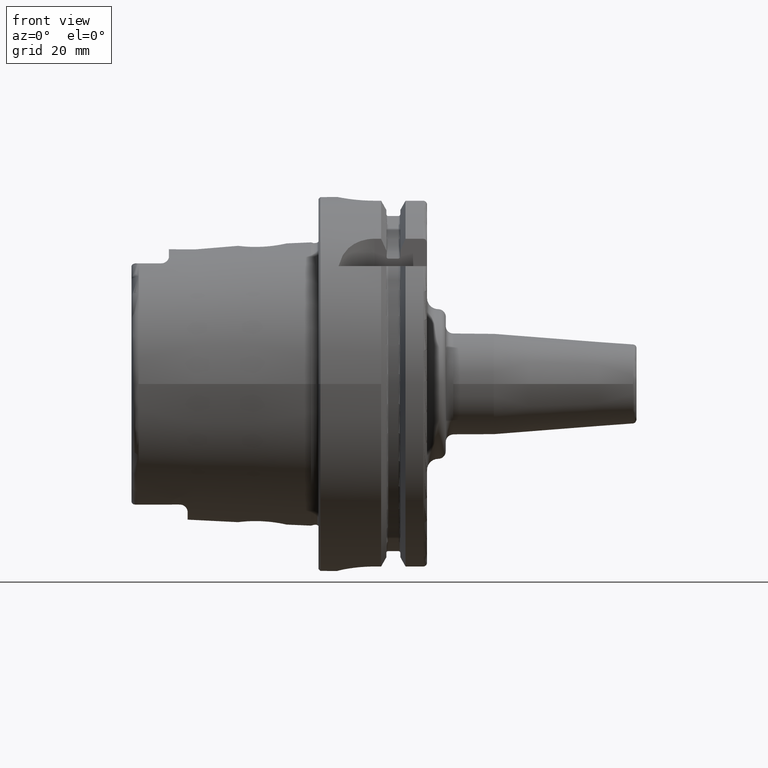
[diagram: clean part render]
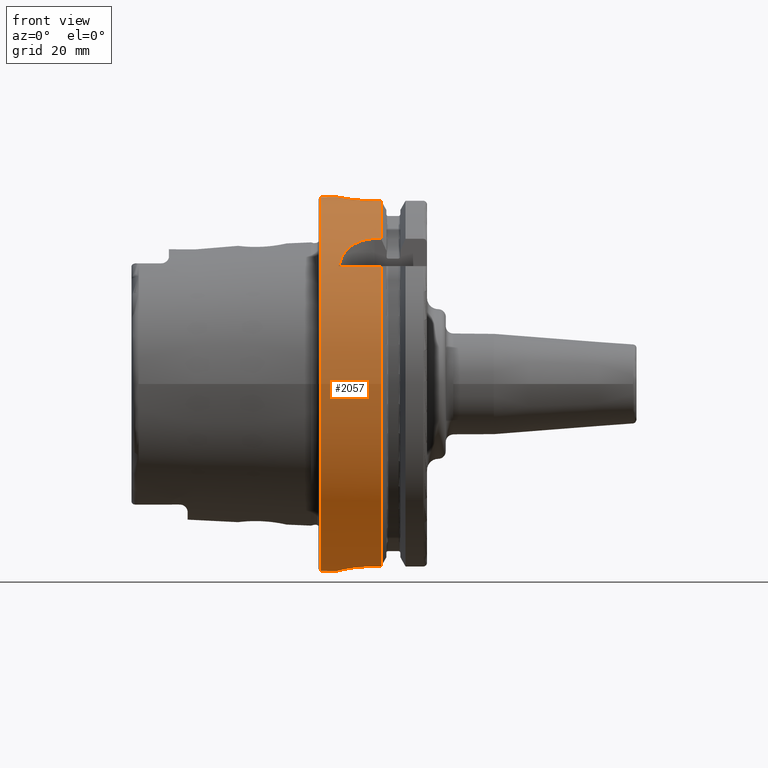
[diagram: same view with one face highlighted and labeled with its STEP entity id]
A machine part, front view. The second image highlights one B-rep face of the part: STEP entity #2057.
In plain terms, the highlighted cylindrical surface (bore or boss wall) has radius 50 mm, axis along (1, 0, 0).
Its self-contained STEP definition (entity closure, byte-faithful):
#56=B_SPLINE_CURVE_WITH_KNOTS('',3,(#3922,#3923,#3924,#3925,#3926,#3927,
#3928,#3929,#3930,#3931,#3932,#3933,#3934,#3935,#3936,#3937,#3938,#3939,
#3940,#3941,#3942,#3943,#3944,#3945,#3946,#3947),.UNSPECIFIED.,.F.,.F.,
(4,2,2,2,2,2,2,2,2,2,2,2,4),(0.,0.188478911015149,0.376957822030298,0.565436091508923,
0.753914360987547,0.942392630466172,1.1308708999448,1.31934981095995,1.50782872197509,
1.69630763299024,1.88478654400539,2.07326481348402,2.26174308296264),
 .UNSPECIFIED.);
#57=B_SPLINE_CURVE_WITH_KNOTS('',3,(#3948,#3949,#3950,#3951,#3952,#3953,
#3954,#3955,#3956,#3957),.UNSPECIFIED.,.F.,.F.,(4,2,2,2,4),(2.26174308296264,
2.45022135244127,2.63869962191989,2.82717853293504,3.01565744395019),
 .UNSPECIFIED.);
#58=B_SPLINE_CURVE_WITH_KNOTS('',3,(#3961,#3962,#3963,#3964,#3965,#3966,
#3967,#3968,#3969,#3970,#3971,#3972),.UNSPECIFIED.,.F.,.F.,(4,2,2,2,2,4),
(1.13213255574021,1.59216410027009,1.87572541272146,2.15928672517283,2.38471683342296,
2.61014694167308),.UNSPECIFIED.);
#65=B_SPLINE_CURVE_WITH_KNOTS('',3,(#4085,#4086,#4087,#4088,#4089,#4090,
#4091,#4092,#4093,#4094,#4095,#4096,#4097,#4098,#4099,#4100,#4101,#4102),
 .UNSPECIFIED.,.F.,.F.,(4,2,2,2,2,2,2,2,4),(0.,0.377795255890194,0.755590511780389,
1.13336459804459,1.51113868430879,1.88891277057299,2.26668685683718,2.64448211272738,
3.02227736861757),.UNSPECIFIED.);
#66=B_SPLINE_CURVE_WITH_KNOTS('',3,(#4110,#4111,#4112,#4113,#4114,#4115,
#4116,#4117,#4118,#4119),.UNSPECIFIED.,.F.,.F.,(4,2,2,2,4),(0.,0.377863193874929,
0.755726387749858,1.13417752669663,1.51262866564341),.UNSPECIFIED.);
#67=B_SPLINE_CURVE_WITH_KNOTS('',3,(#4123,#4124,#4125,#4126,#4127,#4128,
#4129,#4130,#4131,#4132),.UNSPECIFIED.,.F.,.F.,(4,2,2,2,4),(1.50996806152532,
1.8884192004721,2.26687033941887,2.6447335332938,3.02259672716873),
 .UNSPECIFIED.);
#94=FACE_BOUND('',#388,.T.);
#190=CYLINDRICAL_SURFACE('',#2271,50.);
#256=FACE_OUTER_BOUND('',#387,.T.);
#387=EDGE_LOOP('',(#1603,#1604,#1605,#1606,#1607,#1608,#1609,#1610,#1611,
#1612,#1613,#1614,#1615,#1616,#1617,#1618,#1619,#1620));
#388=EDGE_LOOP('',(#1621,#1622));
#513=LINE('',#3978,#619);
#519=LINE('',#4030,#625);
#524=LINE('',#4083,#630);
#525=LINE('',#4104,#631);
#526=LINE('',#4108,#632);
#527=LINE('',#4134,#633);
#528=LINE('',#4138,#634);
#619=VECTOR('',#2695,10.);
#625=VECTOR('',#2703,10.);
#630=VECTOR('',#2712,10.);
#631=VECTOR('',#2713,10.);
#632=VECTOR('',#2716,10.);
#633=VECTOR('',#2719,10.);
#634=VECTOR('',#2722,50.);
#743=CIRCLE('',#2272,50.);
#744=CIRCLE('',#2273,50.);
#745=CIRCLE('',#2274,50.);
#746=CIRCLE('',#2275,50.);
#747=CIRCLE('',#2276,50.);
#748=CIRCLE('',#2277,50.);
#924=VERTEX_POINT('',#3919);
#925=VERTEX_POINT('',#3921);
#926=VERTEX_POINT('',#3959);
#927=VERTEX_POINT('',#3960);
#929=VERTEX_POINT('',#3977);
#938=VERTEX_POINT('',#4029);
#947=VERTEX_POINT('',#4080);
#948=VERTEX_POINT('',#4082);
#949=VERTEX_POINT('',#4084);
#950=VERTEX_POINT('',#4103);
#951=VERTEX_POINT('',#4105);
#952=VERTEX_POINT('',#4107);
#953=VERTEX_POINT('',#4109);
#954=VERTEX_POINT('',#4120);
#955=VERTEX_POINT('',#4122);
#956=VERTEX_POINT('',#4133);
#957=VERTEX_POINT('',#4135);
#958=VERTEX_POINT('',#4137);
#1169=EDGE_CURVE('',#925,#924,#56,.T.);
#1170=EDGE_CURVE('',#924,#925,#57,.T.);
#1171=EDGE_CURVE('',#926,#927,#58,.T.);
#1174=EDGE_CURVE('',#927,#929,#513,.T.);
#1185=EDGE_CURVE('',#938,#926,#519,.T.);
#1195=EDGE_CURVE('',#947,#929,#743,.T.);
#1196=EDGE_CURVE('',#947,#948,#524,.T.);
#1197=EDGE_CURVE('',#948,#949,#65,.T.);
#1198=EDGE_CURVE('',#949,#950,#525,.T.);
#1199=EDGE_CURVE('',#951,#950,#744,.T.);
#1200=EDGE_CURVE('',#951,#952,#526,.T.);
#1201=EDGE_CURVE('',#952,#953,#66,.T.);
#1202=EDGE_CURVE('',#953,#954,#745,.T.);
#1203=EDGE_CURVE('',#954,#955,#67,.T.);
#1204=EDGE_CURVE('',#955,#956,#527,.T.);
#1205=EDGE_CURVE('',#957,#956,#746,.T.);
#1206=EDGE_CURVE('',#957,#958,#528,.T.);
#1207=EDGE_CURVE('',#958,#958,#747,.T.);
#1208=EDGE_CURVE('',#938,#957,#748,.T.);
#1603=ORIENTED_EDGE('',*,*,#1185,.T.);
#1604=ORIENTED_EDGE('',*,*,#1171,.T.);
#1605=ORIENTED_EDGE('',*,*,#1174,.T.);
#1606=ORIENTED_EDGE('',*,*,#1195,.F.);
#1607=ORIENTED_EDGE('',*,*,#1196,.T.);
#1608=ORIENTED_EDGE('',*,*,#1197,.T.);
#1609=ORIENTED_EDGE('',*,*,#1198,.T.);
#1610=ORIENTED_EDGE('',*,*,#1199,.F.);
#1611=ORIENTED_EDGE('',*,*,#1200,.T.);
#1612=ORIENTED_EDGE('',*,*,#1201,.T.);
#1613=ORIENTED_EDGE('',*,*,#1202,.T.);
#1614=ORIENTED_EDGE('',*,*,#1203,.T.);
#1615=ORIENTED_EDGE('',*,*,#1204,.T.);
#1616=ORIENTED_EDGE('',*,*,#1205,.F.);
#1617=ORIENTED_EDGE('',*,*,#1206,.T.);
#1618=ORIENTED_EDGE('',*,*,#1207,.T.);
#1619=ORIENTED_EDGE('',*,*,#1206,.F.);
#1620=ORIENTED_EDGE('',*,*,#1208,.F.);
#1621=ORIENTED_EDGE('',*,*,#1169,.T.);
#1622=ORIENTED_EDGE('',*,*,#1170,.T.);
#2057=ADVANCED_FACE('',(#256,#94),#190,.T.);
#2271=AXIS2_PLACEMENT_3D('',#4079,#2708,#2709);
#2272=AXIS2_PLACEMENT_3D('',#4081,#2710,#2711);
#2273=AXIS2_PLACEMENT_3D('',#4106,#2714,#2715);
#2274=AXIS2_PLACEMENT_3D('',#4121,#2717,#2718);
#2275=AXIS2_PLACEMENT_3D('',#4136,#2720,#2721);
#2276=AXIS2_PLACEMENT_3D('',#4139,#2723,#2724);
#2277=AXIS2_PLACEMENT_3D('',#4140,#2725,#2726);
#2695=DIRECTION('',(1.,0.,0.));
#2703=DIRECTION('',(-1.,0.,0.));
#2708=DIRECTION('center_axis',(1.,0.,0.));
#2709=DIRECTION('ref_axis',(0.,1.,0.));
#2710=DIRECTION('center_axis',(1.,0.,0.));
#2711=DIRECTION('ref_axis',(0.,0.,-1.));
#2712=DIRECTION('',(-1.,0.,0.));
#2713=DIRECTION('',(1.,0.,0.));
#2714=DIRECTION('center_axis',(1.,0.,0.));
#2715=DIRECTION('ref_axis',(0.,0.,-1.));
#2716=DIRECTION('',(-1.,0.,0.));
#2717=DIRECTION('center_axis',(-1.,0.,0.));
#2718=DIRECTION('ref_axis',(0.,1.,0.));
#2719=DIRECTION('',(1.,0.,0.));
#2720=DIRECTION('center_axis',(1.,0.,0.));
#2721=DIRECTION('ref_axis',(0.,0.,-1.));
#2722=DIRECTION('',(-1.,0.,0.));
#2723=DIRECTION('center_axis',(1.,0.,0.));
#2724=DIRECTION('ref_axis',(0.,0.,-1.));
#2725=DIRECTION('center_axis',(1.,0.,0.));
#2726=DIRECTION('ref_axis',(0.,0.,-1.));
#3919=CARTESIAN_POINT('',(12.,50.,-6.12323399573677E-16));
#3921=CARTESIAN_POINT('',(6.99999999999999,49.749371855331,5.));
#3922=CARTESIAN_POINT('Ctrl Pts',(6.99999999999999,49.749371855331,5.));
#3923=CARTESIAN_POINT('Ctrl Pts',(6.37173696328283,49.749371855331,5.));
#3924=CARTESIAN_POINT('Ctrl Pts',(5.70188570880885,49.7624993987098,4.87435544587055));
#3925=CARTESIAN_POINT('Ctrl Pts',(4.4701142477173,49.8098541153698,4.36395693611591));
#3926=CARTESIAN_POINT('Ctrl Pts',(3.90815809537484,49.8433908660961,3.97922590724033));
#3927=CARTESIAN_POINT('Ctrl Pts',(3.02077560297968,49.9062957431473,3.09184341484517));
#3928=CARTESIAN_POINT('Ctrl Pts',(2.63604339567929,49.9397591808605,2.52988660036719));
#3929=CARTESIAN_POINT('Ctrl Pts',(2.12564400622109,49.9869460568296,1.29811292154946));
#3930=CARTESIAN_POINT('Ctrl Pts',(1.99999999999999,50.,0.628260898262081));
#3931=CARTESIAN_POINT('Ctrl Pts',(1.99999999999999,50.,-0.628260898262082));
#3932=CARTESIAN_POINT('Ctrl Pts',(2.12564400622109,49.9869460568296,-1.29811292154946));
#3933=CARTESIAN_POINT('Ctrl Pts',(2.63604339567929,49.9397591808605,-2.52988660036719));
#3934=CARTESIAN_POINT('Ctrl Pts',(3.02077560297968,49.9062957431473,-3.09184341484517));
#3935=CARTESIAN_POINT('Ctrl Pts',(3.90815809537484,49.8433908660961,-3.97922590724033));
#3936=CARTESIAN_POINT('Ctrl Pts',(4.4701142477173,49.8098541153698,-4.36395693611591));
#3937=CARTESIAN_POINT('Ctrl Pts',(5.70188570880885,49.7624993987098,-4.87435544587055));
#3938=CARTESIAN_POINT('Ctrl Pts',(6.37173696328283,49.749371855331,-5.));
#3939=CARTESIAN_POINT('Ctrl Pts',(7.62826303671716,49.749371855331,-5.));
#3940=CARTESIAN_POINT('Ctrl Pts',(8.29811429119113,49.7624993987098,-4.87435544587055));
#3941=CARTESIAN_POINT('Ctrl Pts',(9.52988575228269,49.8098541153698,-4.36395693611591));
#3942=CARTESIAN_POINT('Ctrl Pts',(10.0918419046251,49.8433908660961,-3.97922590724033));
#3943=CARTESIAN_POINT('Ctrl Pts',(10.9792243970203,49.9062957431473,-3.09184341484517));
#3944=CARTESIAN_POINT('Ctrl Pts',(11.3639566043207,49.9397591808605,-2.52988660036719));
#3945=CARTESIAN_POINT('Ctrl Pts',(11.8743559937789,49.9869460568296,-1.29811292154947));
#3946=CARTESIAN_POINT('Ctrl Pts',(12.,50.,-0.628260898262083));
#3947=CARTESIAN_POINT('Ctrl Pts',(12.,50.,-5.55111512312578E-16));
#3948=CARTESIAN_POINT('Ctrl Pts',(12.,50.,-5.55111512312578E-16));
#3949=CARTESIAN_POINT('Ctrl Pts',(12.,50.,0.628260898262082));
#3950=CARTESIAN_POINT('Ctrl Pts',(11.8743559937789,49.9869460568296,1.29811292154946));
#3951=CARTESIAN_POINT('Ctrl Pts',(11.3639566043207,49.9397591808605,2.52988660036719));
#3952=CARTESIAN_POINT('Ctrl Pts',(10.9792243970203,49.9062957431473,3.09184341484517));
#3953=CARTESIAN_POINT('Ctrl Pts',(10.0918419046251,49.8433908660961,3.97922590724033));
#3954=CARTESIAN_POINT('Ctrl Pts',(9.52988575228269,49.8098541153698,4.36395693611591));
#3955=CARTESIAN_POINT('Ctrl Pts',(8.29811429119113,49.7624993987098,4.87435544587055));
#3956=CARTESIAN_POINT('Ctrl Pts',(7.62826303671716,49.749371855331,5.));
#3957=CARTESIAN_POINT('Ctrl Pts',(6.99999999999999,49.749371855331,5.));
#3959=CARTESIAN_POINT('',(5.36310214079494,-38.8297566307078,31.5));
#3960=CARTESIAN_POINT('',(15.,-31.5,38.8297566307078));
#3961=CARTESIAN_POINT('Ctrl Pts',(5.36310214079494,-38.8297566307078,31.5));
#3962=CARTESIAN_POINT('Ctrl Pts',(5.63795050776221,-37.8378299510303,32.722738779917));
#3963=CARTESIAN_POINT('Ctrl Pts',(6.08245260240086,-36.8264130955983,33.8486741193789));
#3964=CARTESIAN_POINT('Ctrl Pts',(7.14730321206235,-35.2667182945212,35.4540138707062));
#3965=CARTESIAN_POINT('Ctrl Pts',(7.68113760815893,-34.6306580359392,36.0741351437033));
#3966=CARTESIAN_POINT('Ctrl Pts',(8.97436758466638,-33.4722127660808,37.1515365058173));
#3967=CARTESIAN_POINT('Ctrl Pts',(9.73574998094174,-32.9521170857844,37.6088911783762));
#3968=CARTESIAN_POINT('Ctrl Pts',(11.1521999725134,-32.2432973482077,38.2170233500259));
#3969=CARTESIAN_POINT('Ctrl Pts',(11.8888981504148,-31.9629772872452,38.4503075998006));
#3970=CARTESIAN_POINT('Ctrl Pts',(13.4369856471743,-31.5908755949743,38.7566077888176));
#3971=CARTESIAN_POINT('Ctrl Pts',(14.2485663058329,-31.5,38.8297566307078));
#3972=CARTESIAN_POINT('Ctrl Pts',(15.,-31.5,38.8297566307078));
#3977=CARTESIAN_POINT('',(16.7379709790786,-31.5,38.8297566307078));
#3978=CARTESIAN_POINT('',(8.61898548953931,-31.5,38.8297566307078));
#4029=CARTESIAN_POINT('',(16.7379709790786,-38.8297566307078,31.5));
#4030=CARTESIAN_POINT('',(8.61898548953931,-38.8297566307078,31.5));
#4079=CARTESIAN_POINT('Origin',(8.61898548953931,0.,0.));
#4080=CARTESIAN_POINT('',(16.7379709790786,-10.,48.9897948556636));
#4081=CARTESIAN_POINT('Origin',(16.7379709790786,0.,0.));
#4082=CARTESIAN_POINT('',(15.,-10.,48.9897948556636));
#4083=CARTESIAN_POINT('',(8.61898548953931,-10.,48.9897948556636));
#4084=CARTESIAN_POINT('',(15.,10.,48.9897948556636));
#4085=CARTESIAN_POINT('Ctrl Pts',(15.,-10.,48.9897948556636));
#4086=CARTESIAN_POINT('Ctrl Pts',(13.740682480366,-10.,48.9897948556636));
#4087=CARTESIAN_POINT('Ctrl Pts',(12.3998222283811,-9.74762796248614,49.0433876618447));
#4088=CARTESIAN_POINT('Ctrl Pts',(9.93707994969945,-8.72605417648382,49.2354150792771));
#4089=CARTESIAN_POINT('Ctrl Pts',(8.81489539818993,-7.95703102192089,49.3709085101933));
#4090=CARTESIAN_POINT('Ctrl Pts',(7.04301862271998,-6.18515424645094,49.6240337638318));
#4091=CARTESIAN_POINT('Ctrl Pts',(6.27395658455242,-5.06294861197626,49.7583347151863));
#4092=CARTESIAN_POINT('Ctrl Pts',(5.25235457764165,-2.60013306081865,49.9476188647081));
#4093=CARTESIAN_POINT('Ctrl Pts',(4.99999999999999,-1.259246954214,50.));
#4094=CARTESIAN_POINT('Ctrl Pts',(4.99999999999999,1.259246954214,50.));
#4095=CARTESIAN_POINT('Ctrl Pts',(5.25235457764165,2.60013306081865,49.9476188647081));
#4096=CARTESIAN_POINT('Ctrl Pts',(6.27395658455242,5.06294861197626,49.7583347151863));
#4097=CARTESIAN_POINT('Ctrl Pts',(7.04301862271998,6.18515424645094,49.6240337638318));
#4098=CARTESIAN_POINT('Ctrl Pts',(8.81489539818993,7.95703102192089,49.3709085101933));
#4099=CARTESIAN_POINT('Ctrl Pts',(9.93707994969945,8.72605417648382,49.2354150792771));
#4100=CARTESIAN_POINT('Ctrl Pts',(12.3998222283811,9.74762796248614,49.0433876618447));
#4101=CARTESIAN_POINT('Ctrl Pts',(13.740682480366,10.,48.9897948556636));
#4102=CARTESIAN_POINT('Ctrl Pts',(15.,10.,48.9897948556636));
#4103=CARTESIAN_POINT('',(16.7379709790786,10.,48.9897948556636));
#4104=CARTESIAN_POINT('',(8.61898548953931,10.,48.9897948556636));
#4105=CARTESIAN_POINT('',(16.7379709790786,11.,-48.7749935930288));
#4106=CARTESIAN_POINT('Origin',(16.7379709790786,0.,0.));
#4107=CARTESIAN_POINT('',(15.,11.,-48.7749935930288));
#4108=CARTESIAN_POINT('',(8.61898548953931,11.,-48.7749935930288));
#4109=CARTESIAN_POINT('',(4.99999999999999,0.999999999999997,-49.9899989998));
#4110=CARTESIAN_POINT('Ctrl Pts',(15.,11.,-48.7749935930288));
#4111=CARTESIAN_POINT('Ctrl Pts',(13.7404560204169,11.,-48.7749935930288));
#4112=CARTESIAN_POINT('Ctrl Pts',(12.3998213084084,10.7475295248871,-48.8340306344483));
#4113=CARTESIAN_POINT('Ctrl Pts',(9.9383361278342,9.72667325975831,-49.0475663096823));
#4114=CARTESIAN_POINT('Ctrl Pts',(8.81713821454868,8.95850056252305,-49.1990678796225));
#4115=CARTESIAN_POINT('Ctrl Pts',(7.04551978193545,7.18842719108522,-49.4887060645896));
#4116=CARTESIAN_POINT('Ctrl Pts',(6.27594389465425,6.06650925178,-49.6460359942126));
#4117=CARTESIAN_POINT('Ctrl Pts',(5.25307325920197,3.60309260864685,-49.8853600567865));
#4118=CARTESIAN_POINT('Ctrl Pts',(4.99999999999999,2.26125147049483,-49.9647689238702));
#4119=CARTESIAN_POINT('Ctrl Pts',(4.99999999999999,1.,-49.9899989998));
#4120=CARTESIAN_POINT('',(4.99999999999999,-1.00000000000001,-49.9899989998));
#4121=CARTESIAN_POINT('Origin',(4.99999999999999,0.,0.));
#4122=CARTESIAN_POINT('',(15.,-11.,-48.7749935930288));
#4123=CARTESIAN_POINT('Ctrl Pts',(4.99999999999999,-1.,-49.9899989998));
#4124=CARTESIAN_POINT('Ctrl Pts',(4.99999999999999,-2.26125147049483,-49.9647689238702));
#4125=CARTESIAN_POINT('Ctrl Pts',(5.25307325920197,-3.60309260864686,-49.8853600567865));
#4126=CARTESIAN_POINT('Ctrl Pts',(6.27594389465425,-6.06650925178001,-49.6460359942126));
#4127=CARTESIAN_POINT('Ctrl Pts',(7.04551978193545,-7.18842719108522,-49.4887060645896));
#4128=CARTESIAN_POINT('Ctrl Pts',(8.81713821454868,-8.95850056252306,-49.1990678796225));
#4129=CARTESIAN_POINT('Ctrl Pts',(9.9383361278342,-9.72667325975831,-49.0475663096823));
#4130=CARTESIAN_POINT('Ctrl Pts',(12.3998213084084,-10.7475295248871,-48.8340306344483));
#4131=CARTESIAN_POINT('Ctrl Pts',(13.7404560204169,-11.,-48.7749935930288));
#4132=CARTESIAN_POINT('Ctrl Pts',(15.,-11.,-48.7749935930288));
#4133=CARTESIAN_POINT('',(16.7379709790786,-11.,-48.7749935930288));
#4134=CARTESIAN_POINT('',(8.61898548953931,-11.,-48.7749935930288));
#4135=CARTESIAN_POINT('',(16.7379709790786,-50.,-6.12323399573677E-15));
#4136=CARTESIAN_POINT('Origin',(16.7379709790786,0.,0.));
#4137=CARTESIAN_POINT('',(0.5,-50.,-6.12323399573677E-15));
#4138=CARTESIAN_POINT('',(8.61898548953931,-50.,-6.12323399573677E-15));
#4139=CARTESIAN_POINT('Origin',(0.5,0.,0.));
#4140=CARTESIAN_POINT('Origin',(16.7379709790786,0.,0.));